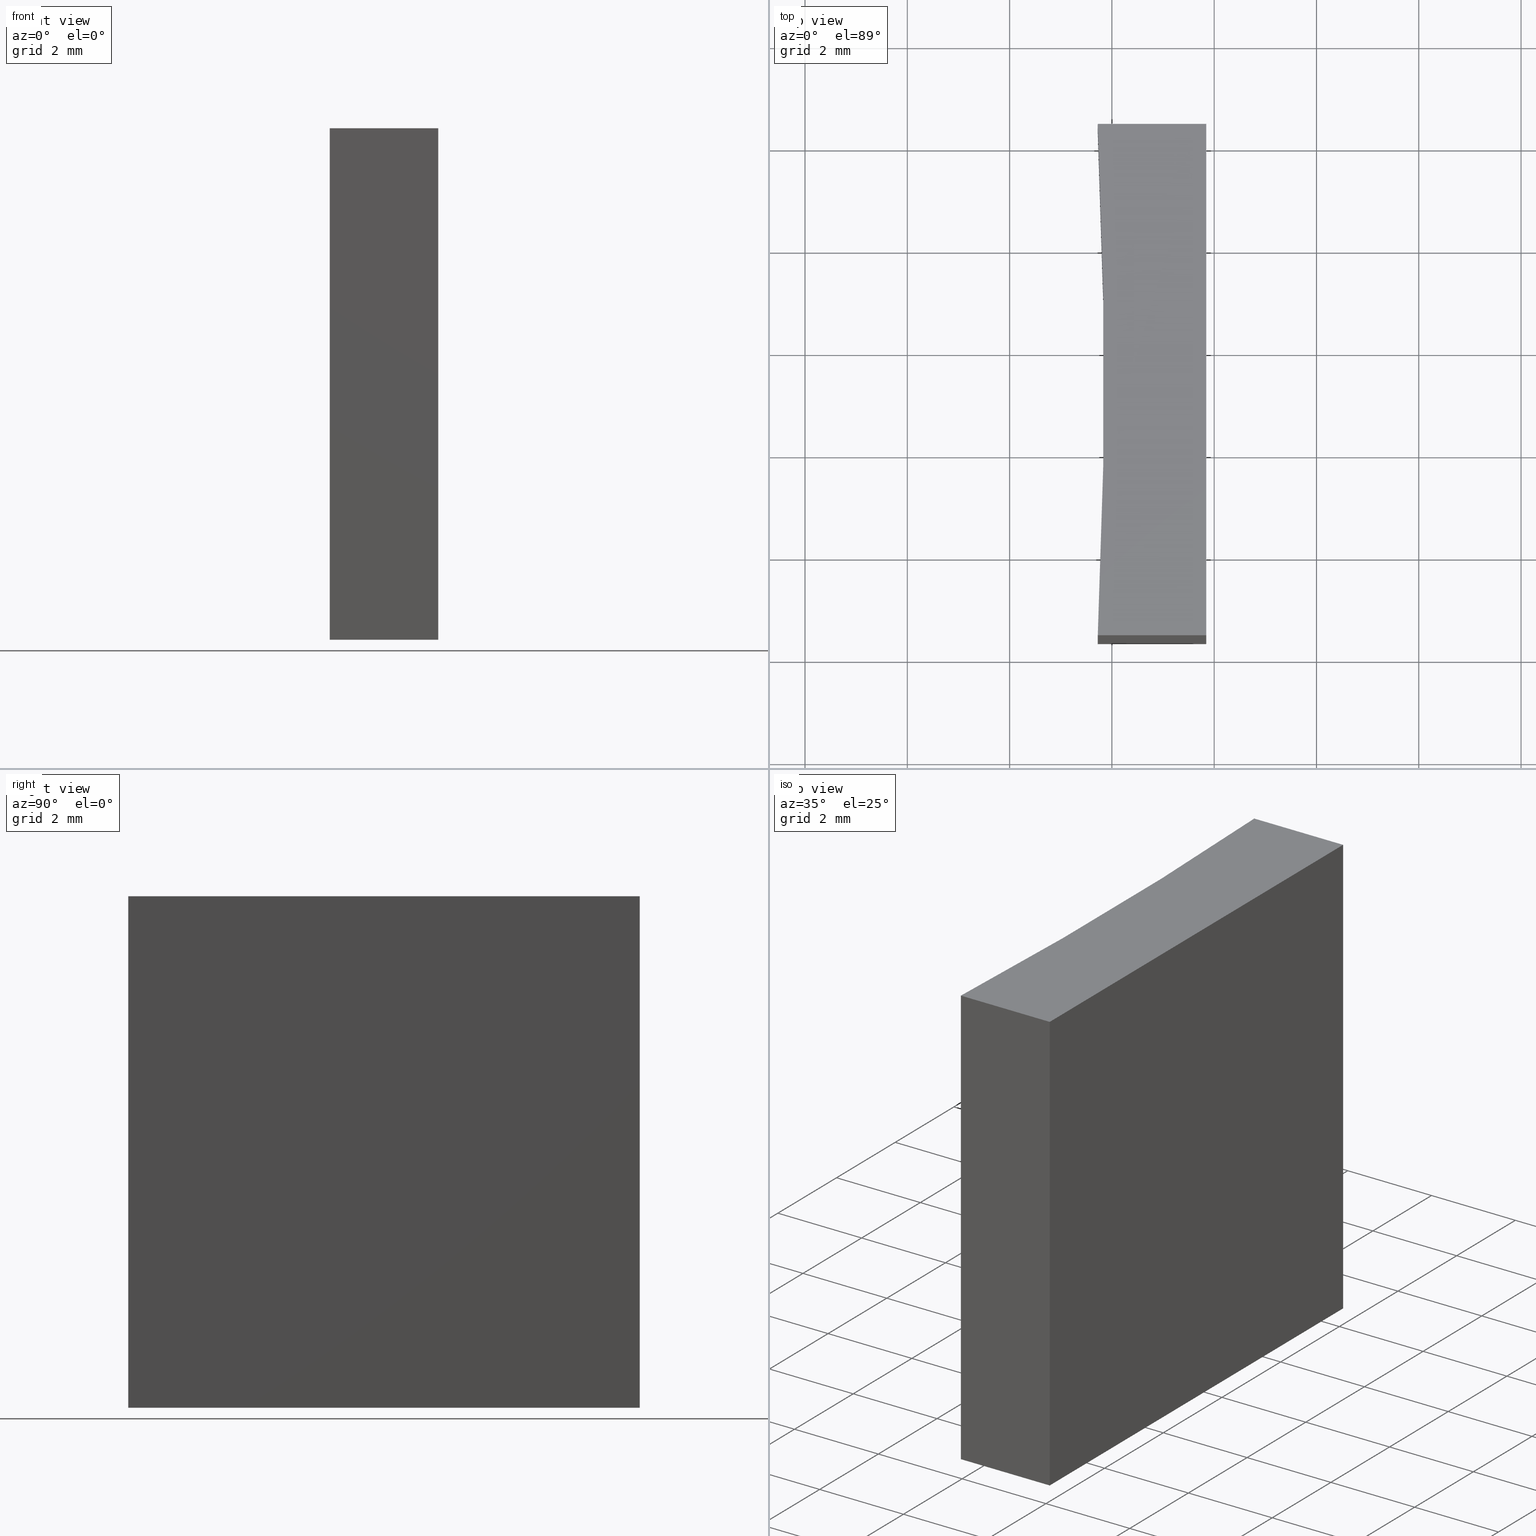
[diagram: canonical four-view strip — front | top / right | iso, engineering-drawing reading convention]
A machine part, canonical four-view strip (front | top / right | iso — engineering-drawing reading convention). The complete STEP part file that produces these views, byte-faithful:
ISO-10303-21;
HEADER;
FILE_DESCRIPTION (( 'STEP AP203' ),
    '1' );
FILE_NAME ('155570.STEP',
    '2024-05-13T06:17:45',
    ( '' ),
    ( '' ),
    'SwSTEP 2.0',
    'SolidWorks 2020',
    '' );
FILE_SCHEMA (( 'CONFIG_CONTROL_DESIGN' ));
ENDSEC;

DATA;
#1 = APPLICATION_CONTEXT ( 'configuration controlled 3d designs of mechanical parts and assemblies' ) ;
#2 = CARTESIAN_POINT ( 'NONE',  ( -45.55479142152581318, 13.35260716345252341, 0.000000000000000000 ) ) ;
#3 = CC_DESIGN_DATE_AND_TIME_ASSIGNMENT ( #202, #144, ( #37 ) ) ;
#4 = LOCAL_TIME ( 14, 17, 45.00000000000000000, #54 ) ;
#5 = CARTESIAN_POINT ( 'NONE',  ( 57.72424807826814686, 18.35260716345252519, 0.000000000000000000 ) ) ;
#6 = DIRECTION ( 'NONE',  ( -1.000000000000000000, -0.000000000000000000, -0.000000000000000000 ) ) ;
#7 = ORIENTED_EDGE ( 'NONE', *, *, #219, .T. ) ;
#8 = ORIENTED_EDGE ( 'NONE', *, *, #172, .F. ) ;
#9 = CYLINDRICAL_SURFACE ( 'NONE', #148, 103.4000000000000057 ) ;
#10 = DIRECTION ( 'NONE',  ( -0.000000000000000000, -0.000000000000000000, -1.000000000000000000 ) ) ;
#11 = ORIENTED_EDGE ( 'NONE', *, *, #130, .F. ) ;
#12 = PERSON_AND_ORGANIZATION_ROLE ( 'creator' ) ;
#13 = PERSON_AND_ORGANIZATION ( #131, #102 ) ;
#14 = LOCAL_TIME ( 14, 17, 45.00000000000000000, #90 ) ;
#15 = PERSON_AND_ORGANIZATION ( #131, #102 ) ;
#16 = CARTESIAN_POINT ( 'NONE',  ( -45.55479142152581318, 13.35260716345252341, 0.000000000000000000 ) ) ;
#17 = PERSON_AND_ORGANIZATION ( #131, #102 ) ;
#18 = UNCERTAINTY_MEASURE_WITH_UNIT (LENGTH_MEASURE( 1.000000000000000082E-05 ), #127, 'distance_accuracy_value', 'NONE');
#19 = VECTOR ( 'NONE', #180, 1000.000000000000000 ) ;
#20 = CC_DESIGN_APPROVAL ( #89, ( #72 ) ) ;
#21 = DIRECTION ( 'NONE',  ( 0.000000000000000000, -0.000000000000000000, 1.000000000000000000 ) ) ;
#22 = CARTESIAN_POINT ( 'NONE',  ( 57.72424807826814686, 18.35260716345252519, 10.00000000000000000 ) ) ;
#23 = CLOSED_SHELL ( 'NONE', ( #67, #213, #105, #122, #152, #96 ) ) ;
#24 = CARTESIAN_POINT ( 'NONE',  ( 57.72424807826814686, 18.35260716345252519, 10.00000000000000000 ) ) ;
#25 = EDGE_LOOP ( 'NONE', ( #7, #62, #179, #197 ) ) ;
#26 = LINE ( 'NONE', #137, #87 ) ;
#27 = CARTESIAN_POINT ( 'NONE',  ( 59.84424807826814430, 18.35260716345252519, 10.00000000000000000 ) ) ;
#28 = APPROVAL_PERSON_ORGANIZATION ( #223, #182, #50 ) ;
#29 = EDGE_CURVE ( 'NONE', #210, #184, #26, .T. ) ;
#30 = EDGE_LOOP ( 'NONE', ( #163, #11, #113, #142 ) ) ;
#31 = AXIS2_PLACEMENT_3D ( 'NONE', #132, #224, #21 ) ;
#32 = APPROVAL_DATE_TIME ( #168, #182 ) ;
#33 = PERSON_AND_ORGANIZATION_ROLE ( 'design_supplier' ) ;
#34 = DIRECTION ( 'NONE',  ( -0.000000000000000000, -0.000000000000000000, -1.000000000000000000 ) ) ;
#35 = DIRECTION ( 'NONE',  ( 1.000000000000000000, 0.000000000000000000, 0.000000000000000000 ) ) ;
#36 = APPROVAL ( #107, 'δָ��' ) ;
#37 = PRODUCT_DEFINITION ( 'δ֪', '', #91, #147 ) ;
#38 = DIRECTION ( 'NONE',  ( -0.000000000000000000, 1.000000000000000000, -0.000000000000000000 ) ) ;
#39 = DIRECTION ( 'NONE',  ( 1.000000000000000000, 0.000000000000000000, -0.000000000000000000 ) ) ;
#40 = DIRECTION ( 'NONE',  ( 1.000000000000000000, 0.000000000000000000, -0.000000000000000000 ) ) ;
#41 = MANIFOLD_SOLID_BREP ( '͹̨-����1', #23 ) ;
#42 = CIRCLE ( 'NONE', #53, 103.4000000000000057 ) ;
#43 = ORIENTED_EDGE ( 'NONE', *, *, #130, .T. ) ;
#44 = PRODUCT_RELATED_PRODUCT_CATEGORY ( 'detail', '', ( #59 ) ) ;
#45 = CARTESIAN_POINT ( 'NONE',  ( -45.55479142152581318, 13.35260716345252341, 10.00000000000000000 ) ) ;
#46 = ORIENTED_EDGE ( 'NONE', *, *, #173, .F. ) ;
#47 = DATE_AND_TIME ( #207, #229 ) ;
#48 = APPLICATION_CONTEXT ( 'configuration controlled 3d designs of mechanical parts and assemblies' ) ;
#49 = CC_DESIGN_PERSON_AND_ORGANIZATION_ASSIGNMENT ( #186, #203, ( #91 ) ) ;
#50 = APPROVAL_ROLE ( '' ) ;
#51 = APPROVAL_STATUS ( 'not_yet_approved' ) ;
#52 = PLANE ( 'NONE',  #83 ) ;
#53 = AXIS2_PLACEMENT_3D ( 'NONE', #155, #95, #176 ) ;
#54 = COORDINATED_UNIVERSAL_TIME_OFFSET ( 8, 0, .AHEAD. ) ;
#55 = CARTESIAN_POINT ( 'NONE',  ( 57.72424807826814686, 8.352607163452523409, 0.000000000000000000 ) ) ;
#56 = CARTESIAN_POINT ( 'NONE',  ( 59.84424807826814430, 18.35260716345252519, 10.00000000000000000 ) ) ;
#57 = CARTESIAN_POINT ( 'NONE',  ( 57.72424807826814686, 8.352607163452523409, 0.000000000000000000 ) ) ;
#58 = EDGE_LOOP ( 'NONE', ( #200, #98, #158, #43 ) ) ;
#59 = PRODUCT ( '155570', '155570', '', ( #149 ) ) ;
#60 = LOCAL_TIME ( 14, 17, 45.00000000000000000, #236 ) ;
#61 = ORIENTED_EDGE ( 'NONE', *, *, #187, .T. ) ;
#62 = ORIENTED_EDGE ( 'NONE', *, *, #151, .F. ) ;
#63 = EDGE_CURVE ( 'NONE', #157, #136, #196, .T. ) ;
#64 = DIRECTION ( 'NONE',  ( -0.000000000000000000, -0.000000000000000000, -1.000000000000000000 ) ) ;
#65 = EDGE_LOOP ( 'NONE', ( #104, #214, #61, #217 ) ) ;
#66 = VECTOR ( 'NONE', #6, 1000.000000000000000 ) ;
#67 = ADVANCED_FACE ( 'NONE', ( #230 ), #9, .F. ) ;
#68 = PERSON_AND_ORGANIZATION ( #131, #102 ) ;
#69 = CC_DESIGN_APPROVAL ( #36, ( #91 ) ) ;
#70 = CALENDAR_DATE ( 2024, 13, 5 ) ;
#71 = DIRECTION ( 'NONE',  ( -0.000000000000000000, -0.000000000000000000, -1.000000000000000000 ) ) ;
#72 = SECURITY_CLASSIFICATION ( '', '', #218 ) ;
#73 = CC_DESIGN_PERSON_AND_ORGANIZATION_ASSIGNMENT ( #13, #124, ( #72 ) ) ;
#74 = APPLICATION_PROTOCOL_DEFINITION ( 'international standard', 'config_control_design', 1994, #48 ) ;
#75 =( NAMED_UNIT ( * ) PLANE_ANGLE_UNIT ( ) SI_UNIT ( $, .RADIAN. ) );
#76 = LINE ( 'NONE', #56, #201 ) ;
#77 = LINE ( 'NONE', #5, #138 ) ;
#78 = EDGE_CURVE ( 'NONE', #99, #80, #146, .T. ) ;
#79 = FACE_OUTER_BOUND ( 'NONE', #58, .T. ) ;
#80 = VERTEX_POINT ( 'NONE', #221 ) ;
#81 = CARTESIAN_POINT ( 'NONE',  ( -45.55479142152581318, 13.35260716345252341, 10.00000000000000000 ) ) ;
#82 = EDGE_CURVE ( 'NONE', #210, #114, #189, .T. ) ;
#83 = AXIS2_PLACEMENT_3D ( 'NONE', #16, #108, #40 ) ;
#84 = CC_DESIGN_PERSON_AND_ORGANIZATION_ASSIGNMENT ( #17, #170, ( #59 ) ) ;
#85 = CARTESIAN_POINT ( 'NONE',  ( 59.84424807826814430, 8.352607163452523409, 10.00000000000000000 ) ) ;
#86 = ORIENTED_EDGE ( 'NONE', *, *, #63, .T. ) ;
#87 = VECTOR ( 'NONE', #159, 1000.000000000000000 ) ;
#88 = CALENDAR_DATE ( 2024, 13, 5 ) ;
#89 = APPROVAL ( #177, 'δָ��' ) ;
#90 = COORDINATED_UNIVERSAL_TIME_OFFSET ( 8, 0, .AHEAD. ) ;
#91 = PRODUCT_DEFINITION_FORMATION_WITH_SPECIFIED_SOURCE ( '�κ�', '', #59, .NOT_KNOWN. ) ;
#92 = CARTESIAN_POINT ( 'NONE',  ( 59.84424807826814430, 18.35260716345252519, 0.000000000000000000 ) ) ;
#93 = APPLICATION_PROTOCOL_DEFINITION ( 'international standard', 'config_control_design', 1994, #1 ) ;
#94 = LINE ( 'NONE', #55, #154 ) ;
#95 = DIRECTION ( 'NONE',  ( -0.000000000000000000, -0.000000000000000000, -1.000000000000000000 ) ) ;
#96 = ADVANCED_FACE ( 'NONE', ( #204 ), #52, .F. ) ;
#97 = CARTESIAN_POINT ( 'NONE',  ( 59.84424807826814430, 8.352607163452523409, 0.000000000000000000 ) ) ;
#98 = ORIENTED_EDGE ( 'NONE', *, *, #63, .F. ) ;
#99 = VERTEX_POINT ( 'NONE', #97 ) ;
#100 = CARTESIAN_POINT ( 'NONE',  ( 57.72424807826814686, 18.35260716345252519, 10.00000000000000000 ) ) ;
#101 = CARTESIAN_POINT ( 'NONE',  ( 57.72424807826814686, 18.35260716345252519, 0.000000000000000000 ) ) ;
#102 = ORGANIZATION ( 'δָ��', 'δָ��', '' ) ;
#103 = APPROVAL_ROLE ( '' ) ;
#104 = ORIENTED_EDGE ( 'NONE', *, *, #172, .T. ) ;
#105 = ADVANCED_FACE ( 'NONE', ( #133 ), #209, .F. ) ;
#106 = DATE_AND_TIME ( #70, #14 ) ;
#107 = APPROVAL_STATUS ( 'not_yet_approved' ) ;
#108 = DIRECTION ( 'NONE',  ( 0.000000000000000000, 0.000000000000000000, 1.000000000000000000 ) ) ;
#109 = DIRECTION ( 'NONE',  ( 0.000000000000000000, 0.000000000000000000, 1.000000000000000000 ) ) ;
#110 = CARTESIAN_POINT ( 'NONE',  ( 0.000000000000000000, 0.000000000000000000, 0.000000000000000000 ) ) ;
#111 = CARTESIAN_POINT ( 'NONE',  ( 57.72424807826814686, 8.352607163452523409, 10.00000000000000000 ) ) ;
#112 = CARTESIAN_POINT ( 'NONE',  ( 59.84424807826814430, 18.35260716345252519, 10.00000000000000000 ) ) ;
#113 = ORIENTED_EDGE ( 'NONE', *, *, #187, .F. ) ;
#114 = VERTEX_POINT ( 'NONE', #57 ) ;
#115 = ORIENTED_EDGE ( 'NONE', *, *, #219, .F. ) ;
#116 = FACE_OUTER_BOUND ( 'NONE', #65, .T. ) ;
#117 = CALENDAR_DATE ( 2024, 13, 5 ) ;
#118 =( GEOMETRIC_REPRESENTATION_CONTEXT ( 3 ) GLOBAL_UNCERTAINTY_ASSIGNED_CONTEXT ( ( #18 ) ) GLOBAL_UNIT_ASSIGNED_CONTEXT ( ( #127, #75, #190 ) ) REPRESENTATION_CONTEXT ( 'NONE', 'WORKASPACE' ) );
#119 = ORIENTED_EDGE ( 'NONE', *, *, #165, .T. ) ;
#120 = SHAPE_DEFINITION_REPRESENTATION ( #150, #183 ) ;
#121 = EDGE_CURVE ( 'NONE', #212, #157, #193, .T. ) ;
#122 = ADVANCED_FACE ( 'NONE', ( #79 ), #226, .F. ) ;
#123 = COORDINATED_UNIVERSAL_TIME_OFFSET ( 8, 0, .AHEAD. ) ;
#124 = PERSON_AND_ORGANIZATION_ROLE ( 'classification_officer' ) ;
#125 = CARTESIAN_POINT ( 'NONE',  ( 57.72424807826814686, 8.352607163452523409, 10.00000000000000000 ) ) ;
#126 = VECTOR ( 'NONE', #64, 1000.000000000000000 ) ;
#127 =( LENGTH_UNIT ( ) NAMED_UNIT ( * ) SI_UNIT ( .MILLI., .METRE. ) );
#128 = DIRECTION ( 'NONE',  ( 0.000000000000000000, 0.000000000000000000, 1.000000000000000000 ) ) ;
#129 = CIRCLE ( 'NONE', #171, 103.4000000000000057 ) ;
#130 = EDGE_CURVE ( 'NONE', #212, #80, #231, .T. ) ;
#131 = PERSON ( 'δָ��', 'δָ��', 'δָ��', ('δָ��'), ('δָ��'), ('δָ��') ) ;
#132 = CARTESIAN_POINT ( 'NONE',  ( 57.72424807826814686, 8.352607163452523409, 10.00000000000000000 ) ) ;
#133 = FACE_OUTER_BOUND ( 'NONE', #30, .T. ) ;
#134 = CARTESIAN_POINT ( 'NONE',  ( 59.84424807826814430, 8.352607163452523409, 10.00000000000000000 ) ) ;
#135 = CC_DESIGN_PERSON_AND_ORGANIZATION_ASSIGNMENT ( #68, #33, ( #91 ) ) ;
#136 = VERTEX_POINT ( 'NONE', #101 ) ;
#137 = CARTESIAN_POINT ( 'NONE',  ( 57.72424807826814686, 8.352607163452523409, 10.00000000000000000 ) ) ;
#138 = VECTOR ( 'NONE', #225, 1000.000000000000000 ) ;
#139 = ORIENTED_EDGE ( 'NONE', *, *, #78, .F. ) ;
#140 = PLANE ( 'NONE',  #198 ) ;
#141 = AXIS2_PLACEMENT_3D ( 'NONE', #199, #162, #181 ) ;
#142 = ORIENTED_EDGE ( 'NONE', *, *, #151, .T. ) ;
#143 = CC_DESIGN_DATE_AND_TIME_ASSIGNMENT ( #47, #233, ( #72 ) ) ;
#144 = DATE_TIME_ROLE ( 'creation_date' ) ;
#145 = CALENDAR_DATE ( 2024, 13, 5 ) ;
#146 = LINE ( 'NONE', #92, #164 ) ;
#147 = DESIGN_CONTEXT ( 'detailed design', #48, 'design' ) ;
#148 = AXIS2_PLACEMENT_3D ( 'NONE', #81, #34, #169 ) ;
#149 = MECHANICAL_CONTEXT ( 'NONE', #1, 'mechanical' ) ;
#150 = PRODUCT_DEFINITION_SHAPE ( 'NONE', 'NONE',  #37 ) ;
#151 = EDGE_CURVE ( 'NONE', #184, #99, #215, .T. ) ;
#152 = ADVANCED_FACE ( 'NONE', ( #116 ), #140, .T. ) ;
#153 = PLANE ( 'NONE',  #31 ) ;
#154 = VECTOR ( 'NONE', #208, 1000.000000000000000 ) ;
#155 = CARTESIAN_POINT ( 'NONE',  ( -45.55479142152581318, 13.35260716345252341, 10.00000000000000000 ) ) ;
#156 = DIRECTION ( 'NONE',  ( -1.000000000000000000, 0.000000000000000000, 0.000000000000000000 ) ) ;
#157 = VERTEX_POINT ( 'NONE', #22 ) ;
#158 = ORIENTED_EDGE ( 'NONE', *, *, #121, .F. ) ;
#159 = DIRECTION ( 'NONE',  ( 1.000000000000000000, 0.000000000000000000, 0.000000000000000000 ) ) ;
#160 = VECTOR ( 'NONE', #71, 1000.000000000000000 ) ;
#161 = APPROVAL_PERSON_ORGANIZATION ( #216, #89, #103 ) ;
#162 = DIRECTION ( 'NONE',  ( 0.000000000000000000, -1.000000000000000000, 0.000000000000000000 ) ) ;
#163 = ORIENTED_EDGE ( 'NONE', *, *, #78, .T. ) ;
#164 = VECTOR ( 'NONE', #239, 1000.000000000000000 ) ;
#165 = EDGE_CURVE ( 'NONE', #136, #114, #129, .T. ) ;
#166 = PERSON_AND_ORGANIZATION ( #131, #102 ) ;
#167 = CC_DESIGN_APPROVAL ( #182, ( #37 ) ) ;
#168 = DATE_AND_TIME ( #145, #60 ) ;
#169 = DIRECTION ( 'NONE',  ( -1.000000000000000000, 0.000000000000000000, 0.000000000000000000 ) ) ;
#170 = PERSON_AND_ORGANIZATION_ROLE ( 'design_owner' ) ;
#171 = AXIS2_PLACEMENT_3D ( 'NONE', #2, #206, #192 ) ;
#172 = EDGE_CURVE ( 'NONE', #157, #210, #42, .T. ) ;
#173 = EDGE_CURVE ( 'NONE', #80, #136, #77, .T. ) ;
#174 = CARTESIAN_POINT ( 'NONE',  ( 59.84424807826814430, 18.35260716345252519, 10.00000000000000000 ) ) ;
#175 = DATE_AND_TIME ( #117, #4 ) ;
#176 = DIRECTION ( 'NONE',  ( 1.000000000000000000, 0.000000000000000000, 0.000000000000000000 ) ) ;
#177 = APPROVAL_STATUS ( 'not_yet_approved' ) ;
#178 = DIRECTION ( 'NONE',  ( 0.000000000000000000, 0.000000000000000000, 1.000000000000000000 ) ) ;
#179 = ORIENTED_EDGE ( 'NONE', *, *, #29, .F. ) ;
#180 = DIRECTION ( 'NONE',  ( -0.000000000000000000, -0.000000000000000000, -1.000000000000000000 ) ) ;
#181 = DIRECTION ( 'NONE',  ( 0.000000000000000000, -0.000000000000000000, -1.000000000000000000 ) ) ;
#182 = APPROVAL ( #51, 'δָ��' ) ;
#183 = ADVANCED_BREP_SHAPE_REPRESENTATION ( '155570', ( #41, #185 ), #118 ) ;
#184 = VERTEX_POINT ( 'NONE', #134 ) ;
#185 = AXIS2_PLACEMENT_3D ( 'NONE', #110, #109, #35 ) ;
#186 = PERSON_AND_ORGANIZATION ( #131, #102 ) ;
#187 = EDGE_CURVE ( 'NONE', #184, #212, #76, .T. ) ;
#188 = COORDINATED_UNIVERSAL_TIME_OFFSET ( 8, 0, .AHEAD. ) ;
#189 = LINE ( 'NONE', #125, #160 ) ;
#190 =( NAMED_UNIT ( * ) SI_UNIT ( $, .STERADIAN. ) SOLID_ANGLE_UNIT ( ) );
#191 = FACE_OUTER_BOUND ( 'NONE', #25, .T. ) ;
#192 = DIRECTION ( 'NONE',  ( 1.000000000000000000, 0.000000000000000000, 0.000000000000000000 ) ) ;
#193 = LINE ( 'NONE', #24, #66 ) ;
#194 = EDGE_LOOP ( 'NONE', ( #119, #234, #8, #86 ) ) ;
#195 = AXIS2_PLACEMENT_3D ( 'NONE', #112, #156, #178 ) ;
#196 = LINE ( 'NONE', #100, #19 ) ;
#197 = ORIENTED_EDGE ( 'NONE', *, *, #82, .T. ) ;
#198 = AXIS2_PLACEMENT_3D ( 'NONE', #45, #128, #39 ) ;
#199 = CARTESIAN_POINT ( 'NONE',  ( 57.72424807826814686, 18.35260716345252519, 10.00000000000000000 ) ) ;
#200 = ORIENTED_EDGE ( 'NONE', *, *, #173, .T. ) ;
#201 = VECTOR ( 'NONE', #38, 1000.000000000000000 ) ;
#202 = DATE_AND_TIME ( #88, #222 ) ;
#203 = PERSON_AND_ORGANIZATION_ROLE ( 'creator' ) ;
#204 = FACE_OUTER_BOUND ( 'NONE', #228, .T. ) ;
#205 = VECTOR ( 'NONE', #10, 1000.000000000000000 ) ;
#206 = DIRECTION ( 'NONE',  ( -0.000000000000000000, -0.000000000000000000, -1.000000000000000000 ) ) ;
#207 = CALENDAR_DATE ( 2024, 13, 5 ) ;
#208 = DIRECTION ( 'NONE',  ( 1.000000000000000000, 0.000000000000000000, 0.000000000000000000 ) ) ;
#209 = PLANE ( 'NONE',  #195 ) ;
#210 = VERTEX_POINT ( 'NONE', #111 ) ;
#211 = CC_DESIGN_SECURITY_CLASSIFICATION ( #72, ( #91 ) ) ;
#212 = VERTEX_POINT ( 'NONE', #174 ) ;
#213 = ADVANCED_FACE ( 'NONE', ( #191 ), #153, .F. ) ;
#214 = ORIENTED_EDGE ( 'NONE', *, *, #29, .T. ) ;
#215 = LINE ( 'NONE', #85, #126 ) ;
#216 = PERSON_AND_ORGANIZATION ( #131, #102 ) ;
#217 = ORIENTED_EDGE ( 'NONE', *, *, #121, .T. ) ;
#218 = SECURITY_CLASSIFICATION_LEVEL ( 'unclassified' ) ;
#219 = EDGE_CURVE ( 'NONE', #114, #99, #94, .T. ) ;
#220 = APPROVAL_DATE_TIME ( #106, #36 ) ;
#221 = CARTESIAN_POINT ( 'NONE',  ( 59.84424807826814430, 18.35260716345252519, 0.000000000000000000 ) ) ;
#222 = LOCAL_TIME ( 14, 17, 45.00000000000000000, #123 ) ;
#223 = PERSON_AND_ORGANIZATION ( #131, #102 ) ;
#224 = DIRECTION ( 'NONE',  ( 0.000000000000000000, 1.000000000000000000, 0.000000000000000000 ) ) ;
#225 = DIRECTION ( 'NONE',  ( -1.000000000000000000, -0.000000000000000000, -0.000000000000000000 ) ) ;
#226 = PLANE ( 'NONE',  #141 ) ;
#227 = ORIENTED_EDGE ( 'NONE', *, *, #165, .F. ) ;
#228 = EDGE_LOOP ( 'NONE', ( #227, #46, #139, #115 ) ) ;
#229 = LOCAL_TIME ( 14, 17, 45.00000000000000000, #188 ) ;
#230 = FACE_OUTER_BOUND ( 'NONE', #194, .T. ) ;
#231 = LINE ( 'NONE', #27, #205 ) ;
#232 = APPROVAL_DATE_TIME ( #175, #89 ) ;
#233 = DATE_TIME_ROLE ( 'classification_date' ) ;
#234 = ORIENTED_EDGE ( 'NONE', *, *, #82, .F. ) ;
#235 = CC_DESIGN_PERSON_AND_ORGANIZATION_ASSIGNMENT ( #15, #12, ( #37 ) ) ;
#236 = COORDINATED_UNIVERSAL_TIME_OFFSET ( 8, 0, .AHEAD. ) ;
#237 = APPROVAL_PERSON_ORGANIZATION ( #166, #36, #238 ) ;
#238 = APPROVAL_ROLE ( '' ) ;
#239 = DIRECTION ( 'NONE',  ( -0.000000000000000000, 1.000000000000000000, -0.000000000000000000 ) ) ;
ENDSEC;
END-ISO-10303-21;
